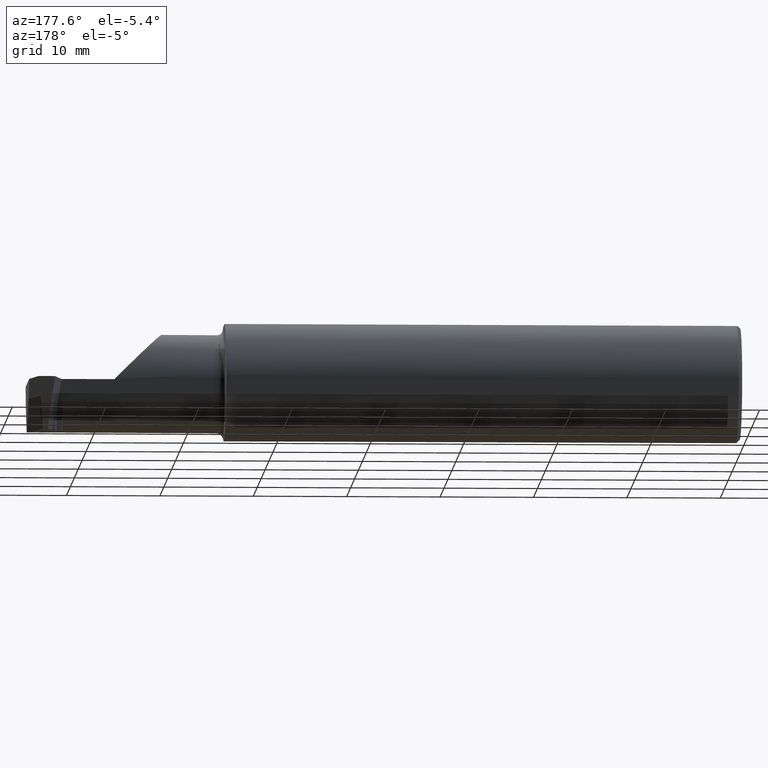
[diagram: clean part render]
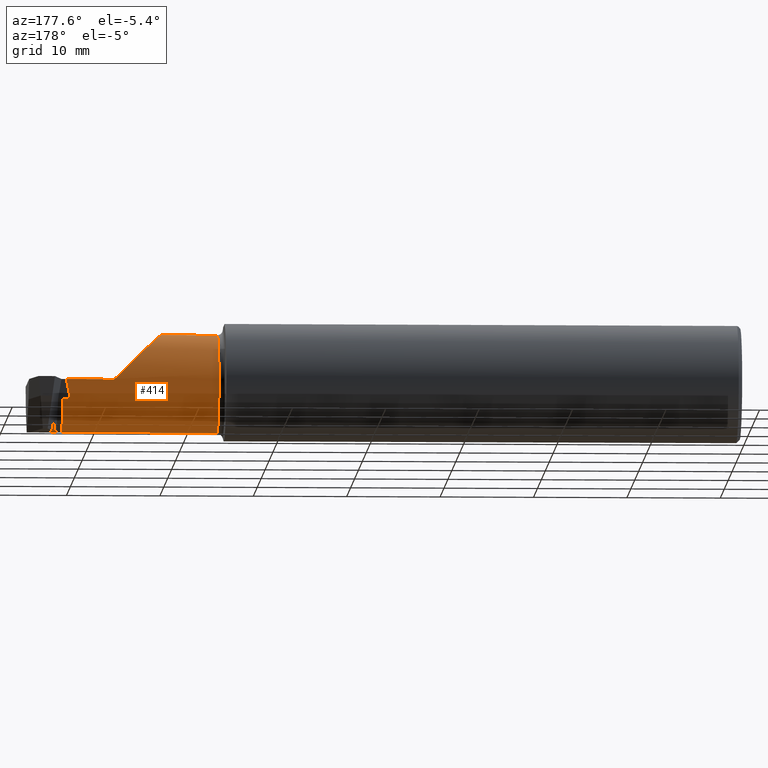
[diagram: same view with one face highlighted and labeled with its STEP entity id]
A machine part, auxiliary view. The second image highlights one B-rep face of the part: STEP entity #414.
In plain terms, the highlighted cylindrical surface (partial cylindrical patch) has radius 5.2578 mm, axis along (-1, -0, -0).
Its self-contained STEP definition (entity closure, byte-faithful):
#6 = CARTESIAN_POINT ( 'NONE',  ( 2.175000000000000266, 0.1101499999999999979, -6.123031769111886291E-17 ) ) ;
#7 = CARTESIAN_POINT ( 'NONE',  ( 2.640000000000000124, 0.1101455977792765439, 0.001349999999999153743 ) ) ;
#10 = VERTEX_POINT ( 'NONE', #357 ) ;
#34 = ORIENTED_EDGE ( 'NONE', *, *, #347, .F. ) ;
#45 = CARTESIAN_POINT ( 'NONE',  ( 2.892835643258365064, -1.619692994613003489E-08, -0.1884960009142943593 ) ) ;
#47 = EDGE_CURVE ( 'NONE', #285, #610, #85, .T. ) ;
#48 = VECTOR ( 'NONE', #137, 39.37007874015748143 ) ;
#50 = EDGE_CURVE ( 'NONE', #750, #338, #119, .T. ) ;
#54 = CARTESIAN_POINT ( 'NONE',  ( 2.826410051084567776, 0.09266310188211816790, -0.08326934739156957588 ) ) ;
#58 = LINE ( 'NONE', #63, #263 ) ;
#63 = CARTESIAN_POINT ( 'NONE',  ( 2.175000000000000266, -0.09685000000000000553, 0.2070000000000000173 ) ) ;
#82 = CARTESIAN_POINT ( 'NONE',  ( 2.434350000000000680, -0.09685000000000000553, 0.2070000000000000173 ) ) ;
#85 =( BOUNDED_CURVE ( )  B_SPLINE_CURVE ( 3, ( #865, #567, #45, #474 ),
 .UNSPECIFIED., .F., .T. ) 
 B_SPLINE_CURVE_WITH_KNOTS ( ( 4, 4 ),
 ( 2.574758067495933389, 3.221287651673029551 ),
 .UNSPECIFIED. ) 
 CURVE ( )  GEOMETRIC_REPRESENTATION_ITEM ( )  RATIONAL_B_SPLINE_CURVE ( ( 1.000000000000000000, 0.9654689110704849364, 0.9654689110704849364, 1.000000000000000000 ) ) 
 REPRESENTATION_ITEM ( '' )  );
#86 = DIRECTION ( 'NONE',  ( 0.000000000000000000, 0.000000000000000000, 1.000000000000000000 ) ) ;
#90 = AXIS2_PLACEMENT_3D ( 'NONE', #761, #120, #186 ) ;
#94 = CARTESIAN_POINT ( 'NONE',  ( 2.434350000000000236, 0.02378168701430510151, 0.2070000000000000173 ) ) ;
#119 =( BOUNDED_CURVE ( )  B_SPLINE_CURVE ( 3, ( #773, #421, #559, #199 ),
 .UNSPECIFIED., .F., .F. ) 
 B_SPLINE_CURVE_WITH_KNOTS ( ( 4, 4 ),
 ( 1.156804228221854913, 1.570796326794911879 ),
 .UNSPECIFIED. ) 
 CURVE ( )  GEOMETRIC_REPRESENTATION_ITEM ( )  RATIONAL_B_SPLINE_CURVE ( ( 1.000000000000000000, 0.9857684695413670983, 0.9857684695413670983, 1.000000000000000000 ) ) 
 REPRESENTATION_ITEM ( '' )  );
#120 = DIRECTION ( 'NONE',  ( -1.000000000000000000, -0.000000000000000000, -0.000000000000000000 ) ) ;
#121 = VERTEX_POINT ( 'NONE', #634 ) ;
#137 = DIRECTION ( 'NONE',  ( -1.000000000000000000, -0.000000000000000000, -0.000000000000000000 ) ) ;
#144 = CARTESIAN_POINT ( 'NONE',  ( 2.640000000000000124, 0.1101499999999999702, -6.123031769111885058E-17 ) ) ;
#161 = AXIS2_PLACEMENT_3D ( 'NONE', #667, #450, #86 ) ;
#167 = DIRECTION ( 'NONE',  ( 1.000000000000000000, 0.000000000000000000, 0.000000000000000000 ) ) ;
#175 = EDGE_LOOP ( 'NONE', ( #600, #698, #453, #409, #34, #932, #553, #180, #529, #530, #384, #274 ) ) ;
#180 = ORIENTED_EDGE ( 'NONE', *, *, #50, .F. ) ;
#186 = DIRECTION ( 'NONE',  ( 0.000000000000000000, 0.000000000000000000, 1.000000000000000000 ) ) ;
#191 = LINE ( 'NONE', #822, #239 ) ;
#199 = CARTESIAN_POINT ( 'NONE',  ( 2.843896949202449953, 0.1101499999999999702, 0.000000000000000000 ) ) ;
#211 = CARTESIAN_POINT ( 'NONE',  ( 2.902903859512527607, -0.09685000000000011655, -0.2069999999999999618 ) ) ;
#218 = DIRECTION ( 'NONE',  ( 1.000000000000000000, 0.000000000000000000, 0.000000000000000000 ) ) ;
#230 = FACE_OUTER_BOUND ( 'NONE', #175, .T. ) ;
#236 = VERTEX_POINT ( 'NONE', #144 ) ;
#239 = VECTOR ( 'NONE', #167, 39.37007874015748143 ) ;
#263 = VECTOR ( 'NONE', #287, 39.37007874015748143 ) ;
#274 = ORIENTED_EDGE ( 'NONE', *, *, #47, .T. ) ;
#282 = EDGE_CURVE ( 'NONE', #751, #540, #426, .T. ) ;
#285 = VERTEX_POINT ( 'NONE', #367 ) ;
#287 = DIRECTION ( 'NONE',  ( -1.000000000000000000, -0.000000000000000000, -0.000000000000000000 ) ) ;
#296 = DIRECTION ( 'NONE',  ( -1.000000000000000000, -0.000000000000000000, -0.000000000000000000 ) ) ;
#303 = EDGE_CURVE ( 'NONE', #236, #338, #655, .T. ) ;
#338 = VERTEX_POINT ( 'NONE', #369 ) ;
#347 = EDGE_CURVE ( 'NONE', #385, #10, #368, .T. ) ;
#357 = CARTESIAN_POINT ( 'NONE',  ( 2.434350000000000680, -0.09685000000000000553, 0.2070000000000000173 ) ) ;
#367 = CARTESIAN_POINT ( 'NONE',  ( 2.876905148354085728, -0.08773859972320476042, -0.2067993771388028923 ) ) ;
#368 =( BOUNDED_CURVE ( )  B_SPLINE_CURVE ( 3, ( #581, #887, #94, #82 ),
 .UNSPECIFIED., .F., .T. ) 
 B_SPLINE_CURVE_WITH_KNOTS ( ( 4, 4 ),
 ( 4.718910765747615699, 6.283185307179586232 ),
 .UNSPECIFIED. ) 
 CURVE ( )  GEOMETRIC_REPRESENTATION_ITEM ( )  RATIONAL_B_SPLINE_CURVE ( ( 1.000000000000000000, 0.8062725446327774215, 0.8062725446327774215, 1.000000000000000000 ) ) 
 REPRESENTATION_ITEM ( '' )  );
#369 = CARTESIAN_POINT ( 'NONE',  ( 2.843896949202449953, 0.1101499999999999702, 0.000000000000000000 ) ) ;
#378 = EDGE_CURVE ( 'NONE', #751, #750, #873, .T. ) ;
#380 = VERTEX_POINT ( 'NONE', #734 ) ;
#384 = ORIENTED_EDGE ( 'NONE', *, *, #656, .T. ) ;
#385 = VERTEX_POINT ( 'NONE', #7 ) ;
#399 = CARTESIAN_POINT ( 'NONE',  ( 2.856905148354085711, 0.09266310188211769605, -0.08326934739157200449 ) ) ;
#409 = ORIENTED_EDGE ( 'NONE', *, *, #510, .F. ) ;
#414 = ADVANCED_FACE ( 'NONE', ( #230 ), #586, .T. ) ;
#421 = CARTESIAN_POINT ( 'NONE',  ( 2.831941729141266073, 0.1042368812308372278, -0.05692852818758704220 ) ) ;
#426 = CIRCLE ( 'NONE', #602, 0.2070000000000000173 ) ;
#429 = CARTESIAN_POINT ( 'NONE',  ( 2.856905148354085711, -0.09685000000000000553, 0.000000000000000000 ) ) ;
#430 = CARTESIAN_POINT ( 'NONE',  ( 2.897254669181323461, -0.002478446436580225565, -0.1905438742845577682 ) ) ;
#442 = CARTESIAN_POINT ( 'NONE',  ( 2.174999999999999822, 0.09266310188211714094, -0.08326934739157193510 ) ) ;
#450 = DIRECTION ( 'NONE',  ( -1.000000000000000000, -0.000000000000000000, -0.000000000000000000 ) ) ;
#453 = ORIENTED_EDGE ( 'NONE', *, *, #500, .T. ) ;
#465 = EDGE_CURVE ( 'NONE', #380, #610, #936, .T. ) ;
#474 = CARTESIAN_POINT ( 'NONE',  ( 2.891205796779050985, 0.03500261659723247210, -0.1595740815310029426 ) ) ;
#498 = CARTESIAN_POINT ( 'NONE',  ( 2.891205796779050985, 0.03500261659723247210, -0.1595740815310029426 ) ) ;
#500 = EDGE_CURVE ( 'NONE', #908, #121, #792, .T. ) ;
#504 = CARTESIAN_POINT ( 'NONE',  ( 2.200000000000000178, -0.09685000000000000553, 0.000000000000000000 ) ) ;
#505 = EDGE_CURVE ( 'NONE', #380, #908, #644, .T. ) ;
#510 = EDGE_CURVE ( 'NONE', #10, #121, #58, .T. ) ;
#529 = ORIENTED_EDGE ( 'NONE', *, *, #378, .F. ) ;
#530 = ORIENTED_EDGE ( 'NONE', *, *, #282, .T. ) ;
#532 = CARTESIAN_POINT ( 'NONE',  ( 2.891205796779050985, 0.03500261659723247210, -0.1595740815310029426 ) ) ;
#540 = VERTEX_POINT ( 'NONE', #574 ) ;
#542 = VECTOR ( 'NONE', #587, 39.37007874015748143 ) ;
#553 = ORIENTED_EDGE ( 'NONE', *, *, #303, .T. ) ;
#559 = CARTESIAN_POINT ( 'NONE',  ( 2.837854847910429967, 0.1101499999999999979, -0.02877135945258275929 ) ) ;
#567 = CARTESIAN_POINT ( 'NONE',  ( 2.887898267488246962, -0.04237708116955053034, -0.2048007881757974435 ) ) ;
#574 = CARTESIAN_POINT ( 'NONE',  ( 2.856905148354085711, -0.08773859972320476042, -0.2067993771388028923 ) ) ;
#581 = CARTESIAN_POINT ( 'NONE',  ( 2.640000000000000124, 0.1101455977792765439, 0.001349999999999153743 ) ) ;
#586 = CYLINDRICAL_SURFACE ( 'NONE', #161, 0.2070000000000000173 ) ;
#587 = DIRECTION ( 'NONE',  ( 1.000000000000000000, 0.000000000000000000, 0.000000000000000000 ) ) ;
#596 = CARTESIAN_POINT ( 'NONE',  ( 2.200000000000000178, -0.09684999999999999165, -0.2070000000000000173 ) ) ;
#600 = ORIENTED_EDGE ( 'NONE', *, *, #465, .F. ) ;
#602 = AXIS2_PLACEMENT_3D ( 'NONE', #429, #645, #729 ) ;
#610 = VERTEX_POINT ( 'NONE', #532 ) ;
#634 = CARTESIAN_POINT ( 'NONE',  ( 2.200000000000000178, -0.09685000000000000553, 0.2070000000000000173 ) ) ;
#644 = LINE ( 'NONE', #713, #48 ) ;
#645 = DIRECTION ( 'NONE',  ( -1.000000000000000000, -0.000000000000000000, -0.000000000000000000 ) ) ;
#655 = LINE ( 'NONE', #6, #542 ) ;
#656 = EDGE_CURVE ( 'NONE', #540, #285, #191, .T. ) ;
#658 = EDGE_CURVE ( 'NONE', #385, #236, #910, .T. ) ;
#667 = CARTESIAN_POINT ( 'NONE',  ( 2.175000000000000266, -0.09685000000000000553, 0.000000000000000000 ) ) ;
#698 = ORIENTED_EDGE ( 'NONE', *, *, #505, .T. ) ;
#713 = CARTESIAN_POINT ( 'NONE',  ( 2.175000000000000266, -0.09684999999999999165, -0.2070000000000000173 ) ) ;
#729 = DIRECTION ( 'NONE',  ( 0.000000000000000000, 9.073166645624061636E-16, -1.000000000000000000 ) ) ;
#734 = CARTESIAN_POINT ( 'NONE',  ( 2.902903859512527607, -0.09685000000000011655, -0.2069999999999999618 ) ) ;
#750 = VERTEX_POINT ( 'NONE', #54 ) ;
#751 = VERTEX_POINT ( 'NONE', #399 ) ;
#761 = CARTESIAN_POINT ( 'NONE',  ( 2.640000000000000124, -0.09685000000000000553, 0.000000000000000000 ) ) ;
#773 = CARTESIAN_POINT ( 'NONE',  ( 2.826410051084567776, 0.09266310188211816790, -0.08326934739156957588 ) ) ;
#788 = DIRECTION ( 'NONE',  ( 0.000000000000000000, 0.000000000000000000, -1.000000000000000000 ) ) ;
#792 = CIRCLE ( 'NONE', #857, 0.2070000000000000173 ) ;
#794 = CARTESIAN_POINT ( 'NONE',  ( 2.901313732182814409, -0.04822944725383364328, -0.2070000000000000728 ) ) ;
#815 = VECTOR ( 'NONE', #296, 39.37007874015748143 ) ;
#822 = CARTESIAN_POINT ( 'NONE',  ( 2.175000000000000266, -0.08773859972320470491, -0.2067993771388008939 ) ) ;
#857 = AXIS2_PLACEMENT_3D ( 'NONE', #504, #218, #788 ) ;
#865 = CARTESIAN_POINT ( 'NONE',  ( 2.876905148354085728, -0.08773859972320476042, -0.2067993771388028923 ) ) ;
#873 = LINE ( 'NONE', #442, #815 ) ;
#887 = CARTESIAN_POINT ( 'NONE',  ( 2.519370878431649974, 0.1093588693857053817, 0.1219791215683502378 ) ) ;
#908 = VERTEX_POINT ( 'NONE', #596 ) ;
#910 = CIRCLE ( 'NONE', #90, 0.2070000000000000173 ) ;
#932 = ORIENTED_EDGE ( 'NONE', *, *, #658, .T. ) ;
#936 =( BOUNDED_CURVE ( )  B_SPLINE_CURVE ( 3, ( #211, #794, #430, #498 ),
 .UNSPECIFIED., .F., .T. ) 
 B_SPLINE_CURVE_WITH_KNOTS ( ( 4, 4 ),
 ( 3.348588702876314827, 4.039148939157572116 ),
 .UNSPECIFIED. ) 
 CURVE ( )  GEOMETRIC_REPRESENTATION_ITEM ( )  RATIONAL_B_SPLINE_CURVE ( ( 1.000000000000000000, 0.9606537871080400581, 0.9606537871080400581, 1.000000000000000000 ) ) 
 REPRESENTATION_ITEM ( '' )  );